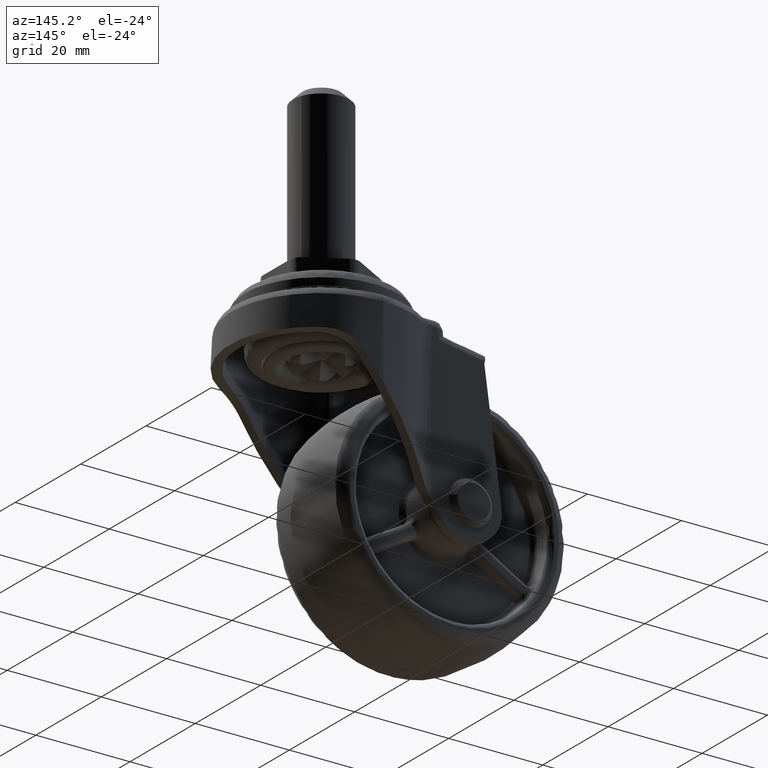
[diagram: clean part render]
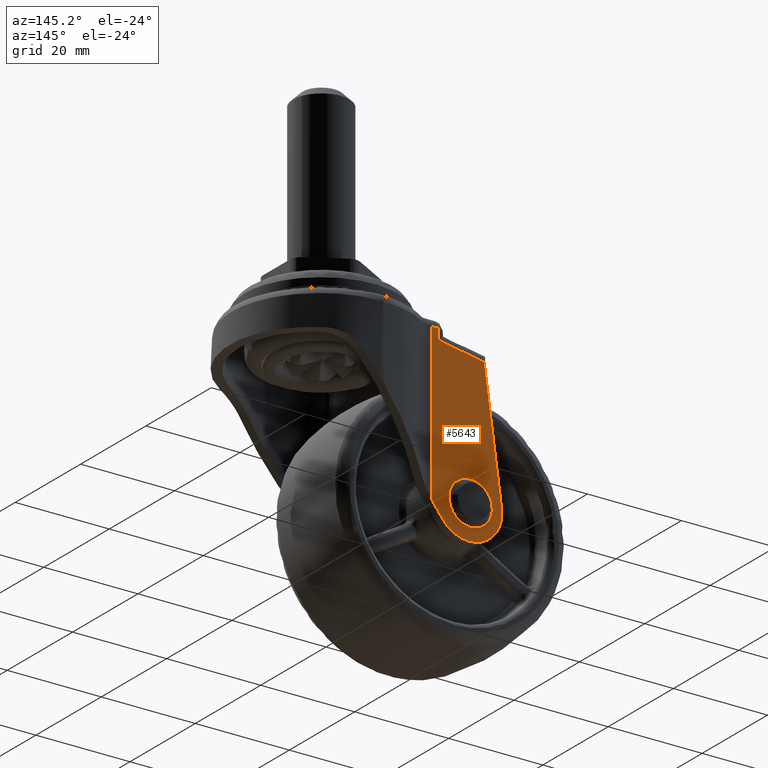
[diagram: same view with one face highlighted and labeled with its STEP entity id]
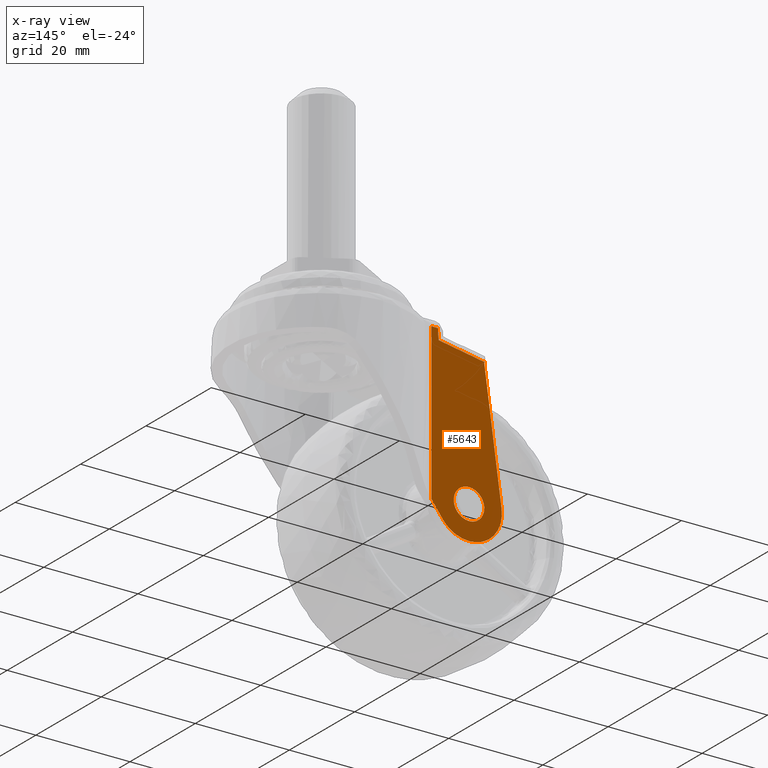
[diagram: x-ray of the same camera — body ghosted, the highlighted face saturated]
A machine part, auxiliary view. The second image highlights one B-rep face of the part: STEP entity #5643.
The next image is the same camera in x-ray: the body ghosted, the highlighted face saturated — about 0% of this face is hidden behind the body in this view.
In plain terms, the highlighted face is a freeform B-spline surface patch.
Its self-contained STEP definition (entity closure, byte-faithful):
#688=CARTESIAN_POINT('',(-3.243938094870078,14.999985000000001,0.198407753504449));
#689=VERTEX_POINT('',#688);
#695=CARTESIAN_POINT('',(0.0,14.999985000000001,3.250000000000000));
#696=VERTEX_POINT('',#695);
#697=CARTESIAN_POINT('',(0.0,14.999985000000001,3.250000000000000));
#698=CARTESIAN_POINT('',(-3.057294717412979,14.999985000000002,3.250000000000000));
#699=CARTESIAN_POINT('',(-3.243938094870078,14.999985000000008,0.198407753504449));
#707=(BOUNDED_CURVE()B_SPLINE_CURVE(2,(#697,#698,#699),.UNSPECIFIED.,.F.,.U.)B_SPLINE_CURVE_WITH_KNOTS((3,3),(0.500000000000000,0.739332962240248),.UNSPECIFIED.)CURVE()GEOMETRIC_REPRESENTATION_ITEM()RATIONAL_B_SPLINE_CURVE((1.0,0.719603993285181,0.976072041669516))REPRESENTATION_ITEM(''));
#708=EDGE_CURVE('',#696,#689,#707,.T.);
#710=CARTESIAN_POINT('',(3.227280960673824,14.999985000000001,-0.383611262702537));
#711=VERTEX_POINT('',#710);
#712=CARTESIAN_POINT('',(3.227280960673825,14.999985000000006,-0.383611262702537));
#713=CARTESIAN_POINT('',(3.250000000000000,14.999985000000004,-0.192478388937499));
#714=CARTESIAN_POINT('',(3.250000000000000,14.999985000000001,0.0));
#715=CARTESIAN_POINT('',(3.250000000000000,14.999984999999993,3.250000000000000));
#716=CARTESIAN_POINT('',(0.0,14.999985000000001,3.250000000000000));
#724=(BOUNDED_CURVE()B_SPLINE_CURVE(2,(#712,#713,#714,#715,#716),.UNSPECIFIED.,.F.,.U.)B_SPLINE_CURVE_WITH_KNOTS((3,2,3),(0.229562473508515,0.250000000000000,0.500000000000000),.UNSPECIFIED.)CURVE()GEOMETRIC_REPRESENTATION_ITEM()RATIONAL_B_SPLINE_CURVE((0.956026754173912,0.976055948325295,1.0,0.707106781186547,1.0))REPRESENTATION_ITEM(''));
#725=EDGE_CURVE('',#711,#696,#724,.T.);
#769=CARTESIAN_POINT('',(0.0,14.999985000000001,-3.250000000000000));
#770=VERTEX_POINT('',#769);
#771=CARTESIAN_POINT('',(0.0,14.999985000000001,-3.250000000000000));
#772=CARTESIAN_POINT('',(2.886567209219319,14.999985000000006,-3.250000000000000));
#773=CARTESIAN_POINT('',(3.227280960673825,14.999985000000006,-0.383611262702537));
#781=(BOUNDED_CURVE()B_SPLINE_CURVE(2,(#771,#772,#773),.UNSPECIFIED.,.F.,.U.)B_SPLINE_CURVE_WITH_KNOTS((3,3),(0.0,0.229562473508515),.UNSPECIFIED.)CURVE()GEOMETRIC_REPRESENTATION_ITEM()RATIONAL_B_SPLINE_CURVE((1.0,0.731050832861253,0.956026754173912))REPRESENTATION_ITEM(''));
#782=EDGE_CURVE('',#770,#711,#781,.T.);
#784=CARTESIAN_POINT('',(-3.243938094870079,14.999985000000001,0.198407753504449));
#785=CARTESIAN_POINT('',(-3.249999999999999,14.999985000000001,0.099296480736624));
#786=CARTESIAN_POINT('',(-3.250000000000000,14.999985000000001,0.0));
#787=CARTESIAN_POINT('',(-3.250000000000000,14.999984999999993,-3.250000000000000));
#788=CARTESIAN_POINT('',(0.0,14.999985000000001,-3.250000000000000));
#796=(BOUNDED_CURVE()B_SPLINE_CURVE(2,(#784,#785,#786,#787,#788),.UNSPECIFIED.,.F.,.U.)B_SPLINE_CURVE_WITH_KNOTS((3,2,3),(0.739332962240249,0.750000000000000,1.0),.UNSPECIFIED.)CURVE()GEOMETRIC_REPRESENTATION_ITEM()RATIONAL_B_SPLINE_CURVE((0.976072041669516,0.987502787901367,1.0,0.707106781186547,1.0))REPRESENTATION_ITEM(''));
#797=EDGE_CURVE('',#689,#770,#796,.T.);
#2794=CARTESIAN_POINT('',(8.038496614984299,14.999985000000040,31.959998999999900));
#2795=VERTEX_POINT('',#2794);
#2898=CARTESIAN_POINT('',(8.038496614984240,14.999985000000040,-1.005739681956386));
#2899=VERTEX_POINT('',#2898);
#2915=CARTESIAN_POINT('',(8.038496614984299,14.999985000000040,31.959998999999900));
#2916=CARTESIAN_POINT('',(8.038496614984240,14.999985000000040,-1.005739681956386));
#2917=QUASI_UNIFORM_CURVE('',1,(#2915,#2916),.UNSPECIFIED.,.F.,.U.);
#2918=EDGE_CURVE('',#2795,#2899,#2917,.T.);
#3293=CARTESIAN_POINT('',(6.467246426400180,14.999985000000040,29.709784028278701));
#3294=VERTEX_POINT('',#3293);
#3516=CARTESIAN_POINT('',(6.611520835696700,14.999985000000040,31.959998999999900));
#3517=VERTEX_POINT('',#3516);
#3518=CARTESIAN_POINT('',(6.467246426400180,14.999985000000040,29.709784028278701));
#3519=CARTESIAN_POINT('',(6.611520835696700,14.999985000000040,31.959998999999900));
#3520=QUASI_UNIFORM_CURVE('',1,(#3518,#3519),.UNSPECIFIED.,.F.,.U.);
#3521=EDGE_CURVE('',#3294,#3517,#3520,.T.);
#3875=CARTESIAN_POINT('',(6.611520835696700,14.999985000000040,31.959998999999900));
#3876=CARTESIAN_POINT('',(8.038496614984299,14.999985000000040,31.959998999999900));
#3877=QUASI_UNIFORM_CURVE('',1,(#3875,#3876),.UNSPECIFIED.,.F.,.U.);
#3878=EDGE_CURVE('',#3517,#2795,#3877,.T.);
#4290=CARTESIAN_POINT('',(-3.273261190953540,14.999985000000001,27.890306182957950));
#4291=VERTEX_POINT('',#4290);
#4292=CARTESIAN_POINT('',(-3.366469656212110,14.999985000000040,27.973207399967499));
#4293=VERTEX_POINT('',#4292);
#4294=CARTESIAN_POINT('',(-3.273261190953547,14.999985000000001,27.890306182957950));
#4295=CARTESIAN_POINT('',(-3.286790799085494,14.999985000000006,27.968943639854167));
#4296=CARTESIAN_POINT('',(-3.366469656212111,14.999985000000001,27.973207399967489));
#4304=(BOUNDED_CURVE()B_SPLINE_CURVE(2,(#4294,#4295,#4296),.UNSPECIFIED.,.F.,.U.)CURVE()GEOMETRIC_REPRESENTATION_ITEM()QUASI_UNIFORM_CURVE()RATIONAL_B_SPLINE_CURVE((1.0,0.781658017013851,1.0))REPRESENTATION_ITEM(''));
#4305=EDGE_CURVE('',#4291,#4293,#4304,.T.);
#4503=CARTESIAN_POINT('',(-3.268058092038730,14.999985000000040,27.584851076363901));
#4504=VERTEX_POINT('',#4503);
#4505=CARTESIAN_POINT('',(-3.268058092038747,14.999985000000001,27.584851076363901));
#4506=CARTESIAN_POINT('',(-3.247053532288740,14.999985000000002,27.737980734319024));
#4507=CARTESIAN_POINT('',(-3.273261190953543,14.999985000000001,27.890306182957950));
#4515=(BOUNDED_CURVE()B_SPLINE_CURVE(2,(#4505,#4506,#4507),.UNSPECIFIED.,.F.,.U.)CURVE()GEOMETRIC_REPRESENTATION_ITEM()QUASI_UNIFORM_CURVE()RATIONAL_B_SPLINE_CURVE((1.0,0.988264906998284,1.0))REPRESENTATION_ITEM(''));
#4516=EDGE_CURVE('',#4504,#4291,#4515,.T.);
#4548=CARTESIAN_POINT('',(-3.366916777729765,14.999985000000040,27.975752992311101));
#4549=VERTEX_POINT('',#4548);
#4550=CARTESIAN_POINT('',(-3.366916777729765,14.999985000000040,27.975752992311101));
#4551=CARTESIAN_POINT('',(6.467246426400180,14.999985000000040,29.709784028278701));
#4552=QUASI_UNIFORM_CURVE('',1,(#4550,#4551),.UNSPECIFIED.,.F.,.U.);
#4553=EDGE_CURVE('',#4549,#3294,#4552,.T.);
#4681=CARTESIAN_POINT('',(5.626426443930730,14.999985000000001,-4.264529842961020));
#4682=VERTEX_POINT('',#4681);
#4688=CARTESIAN_POINT('',(5.626426443930730,14.999985000000001,-4.264529842961020));
#4689=CARTESIAN_POINT('',(8.038496614984240,14.999985000000040,-1.005739681956386));
#4690=QUASI_UNIFORM_CURVE('',1,(#4688,#4689),.UNSPECIFIED.,.F.,.U.);
#4691=EDGE_CURVE('',#4682,#2899,#4690,.T.);
#5083=CARTESIAN_POINT('',(-6.935061790085940,14.999985000000001,0.851273763320094));
#5084=VERTEX_POINT('',#5083);
#5085=CARTESIAN_POINT('',(-6.935061790085943,14.999985000000001,0.851273763320098));
#5086=CARTESIAN_POINT('',(-7.673625924574255,14.999985000000008,-4.533084425491958));
#5087=CARTESIAN_POINT('',(-2.640263860263103,14.999985000000001,-6.582976231352275));
#5088=CARTESIAN_POINT('',(2.393098204048050,14.999985000000008,-8.632868037212592));
#5089=CARTESIAN_POINT('',(5.626426443930727,14.999985000000001,-4.264529842961021));
#5097=(BOUNDED_CURVE()B_SPLINE_CURVE(2,(#5085,#5086,#5087,#5088,#5089),.UNSPECIFIED.,.F.,.U.)B_SPLINE_CURVE_WITH_KNOTS((3,2,3),(0.0,0.500000000000000,1.0),.UNSPECIFIED.)CURVE()GEOMETRIC_REPRESENTATION_ITEM()RATIONAL_B_SPLINE_CURVE((1.0,0.789880634739352,1.0,0.789880634739352,1.0))REPRESENTATION_ITEM(''));
#5098=EDGE_CURVE('',#5084,#4682,#5097,.T.);
#5198=CARTESIAN_POINT('',(-3.268058092038730,14.999985000000040,27.584851076363901));
#5199=CARTESIAN_POINT('',(-6.935061790085940,14.999985000000001,0.851273763320094));
#5200=QUASI_UNIFORM_CURVE('',1,(#5198,#5199),.UNSPECIFIED.,.F.,.U.);
#5201=EDGE_CURVE('',#4504,#5084,#5200,.T.);
#5381=CARTESIAN_POINT('',(-3.366916777729765,14.999985000000040,27.975752992311101));
#5382=CARTESIAN_POINT('',(-3.366469656212110,14.999985000000040,27.973207399967499));
#5383=QUASI_UNIFORM_CURVE('',1,(#5381,#5382),.UNSPECIFIED.,.F.,.U.);
#5384=EDGE_CURVE('',#4549,#4293,#5383,.T.);
#5620=CARTESIAN_POINT('',(-7.745374886357709,14.999985000000040,33.910836158715597));
#5621=CARTESIAN_POINT('',(-7.745374886357709,14.999985000000040,-9.046632005436582));
#5622=CARTESIAN_POINT('',(8.789394063295893,14.999985000000040,33.910836158715597));
#5623=CARTESIAN_POINT('',(8.789394063295893,14.999985000000040,-9.046632005436582));
#5624=B_SPLINE_SURFACE_WITH_KNOTS('',1,1,((#5620,#5622),(#5621,#5623)),.UNSPECIFIED.,.F.,.F.,.U.,(2,2),(2,2),(0.0,42.957468164152189),(0.0,16.534768949653600),.UNSPECIFIED.);
#5625=ORIENTED_EDGE('',*,*,#3878,.T.);
#5626=ORIENTED_EDGE('',*,*,#2918,.T.);
#5627=ORIENTED_EDGE('',*,*,#4691,.F.);
#5628=ORIENTED_EDGE('',*,*,#5098,.F.);
#5629=ORIENTED_EDGE('',*,*,#5201,.F.);
#5630=ORIENTED_EDGE('',*,*,#4516,.T.);
#5631=ORIENTED_EDGE('',*,*,#4305,.T.);
#5632=ORIENTED_EDGE('',*,*,#5384,.F.);
#5633=ORIENTED_EDGE('',*,*,#4553,.T.);
#5634=ORIENTED_EDGE('',*,*,#3521,.T.);
#5635=EDGE_LOOP('',(#5625,#5626,#5627,#5628,#5629,#5630,#5631,#5632,#5633,#5634));
#5636=FACE_OUTER_BOUND('',#5635,.T.);
#5637=ORIENTED_EDGE('',*,*,#708,.T.);
#5638=ORIENTED_EDGE('',*,*,#797,.T.);
#5639=ORIENTED_EDGE('',*,*,#782,.T.);
#5640=ORIENTED_EDGE('',*,*,#725,.T.);
#5641=EDGE_LOOP('',(#5637,#5638,#5639,#5640));
#5642=FACE_BOUND('',#5641,.T.);
#5643=ADVANCED_FACE('',(#5636,#5642),#5624,.F.);